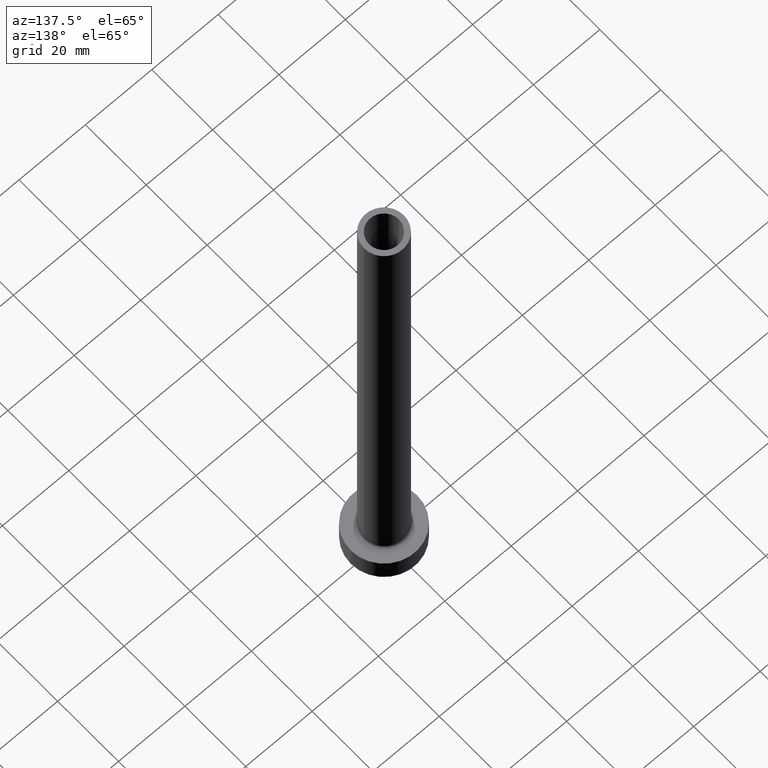
[diagram: clean part render]
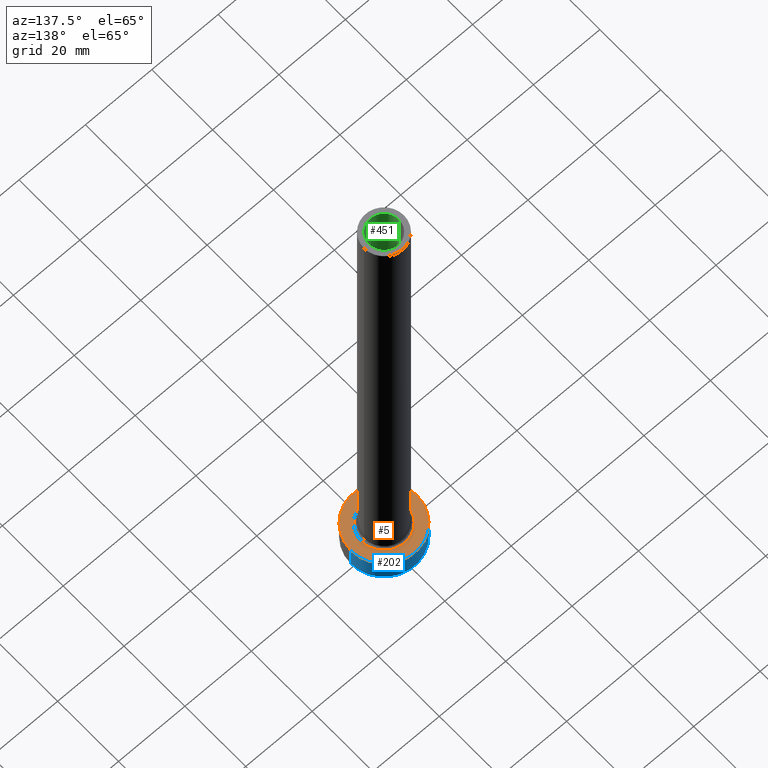
[diagram: same view with three faces highlighted in distinct colors, each labeled with its STEP entity id]
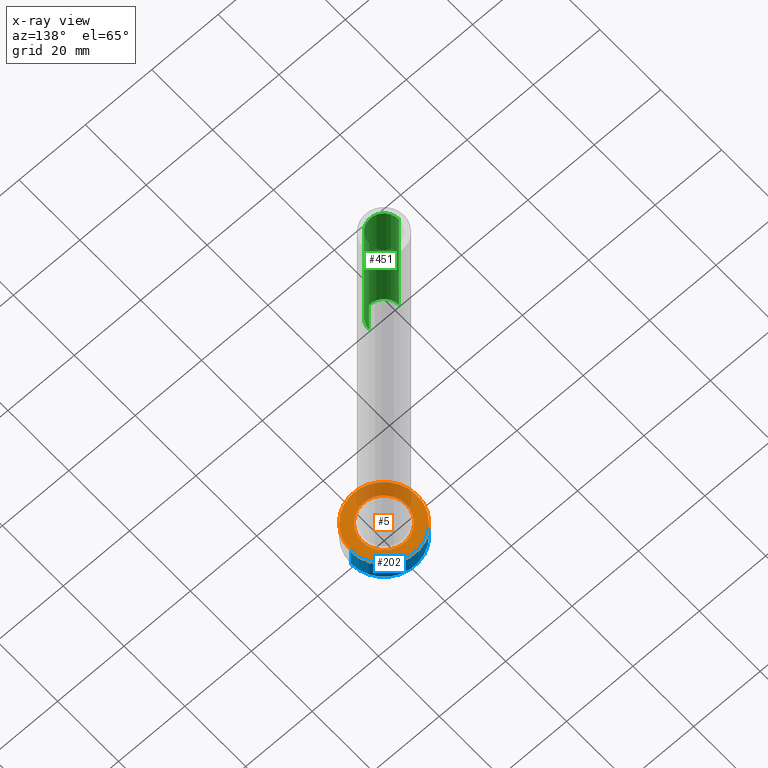
[diagram: x-ray of the same camera — body ghosted, the three highlighted faces saturated]
A machine part, auxiliary view with three faces highlighted in distinct colors.
The next image is the same camera in x-ray (body ghosted, the three faces saturated) — at least one of them is partly hidden behind the body in this view.
Their STEP definitions:

[orange] entity #5 — the highlighted planar face has unit normal (0, 0, 1).
#2 = VERTEX_POINT ( 'NONE', #297 ) ;
#5 = ADVANCED_FACE ( 'NONE', ( #266, #360 ), #183, .T. ) ;
#8 = DIRECTION ( 'NONE',  ( 0.000000000000000000, 0.000000000000000000, 1.000000000000000000 ) ) ;
#23 = VERTEX_POINT ( 'NONE', #130 ) ;
#31 = ORIENTED_EDGE ( 'NONE', *, *, #400, .T. ) ;
#76 = ORIENTED_EDGE ( 'NONE', *, *, #120, .T. ) ;
#92 = DIRECTION ( 'NONE',  ( 0.000000000000000000, 0.000000000000000000, 1.000000000000000000 ) ) ;
#120 = EDGE_CURVE ( 'NONE', #447, #281, #215, .T. ) ;
#130 = CARTESIAN_POINT ( 'NONE',  ( 10.00000000000000000, 1.224646799147353256E-15, 7.000000000000000000 ) ) ;
#142 = EDGE_LOOP ( 'NONE', ( #419, #76 ) ) ;
#173 = EDGE_LOOP ( 'NONE', ( #31, #258 ) ) ;
#183 = PLANE ( 'NONE',  #337 ) ;
#186 = AXIS2_PLACEMENT_3D ( 'NONE', #203, #92, #304 ) ;
#203 = CARTESIAN_POINT ( 'NONE',  ( 0.000000000000000000, 0.000000000000000000, 7.000000000000000000 ) ) ;
#215 = CIRCLE ( 'NONE', #275, 6.700000000000001066 ) ;
#224 = DIRECTION ( 'NONE',  ( 1.000000000000000000, 0.000000000000000000, -0.000000000000000000 ) ) ;
#226 = CARTESIAN_POINT ( 'NONE',  ( 0.000000000000000000, 0.000000000000000000, 7.000000000000000000 ) ) ;
#229 = CARTESIAN_POINT ( 'NONE',  ( 6.700000000000001066, 0.000000000000000000, 7.000000000000006217 ) ) ;
#251 = DIRECTION ( 'NONE',  ( 1.000000000000000000, 0.000000000000000000, 0.000000000000000000 ) ) ;
#253 = DIRECTION ( 'NONE',  ( -0.000000000000000000, -0.000000000000000000, -1.000000000000000000 ) ) ;
#258 = ORIENTED_EDGE ( 'NONE', *, *, #279, .T. ) ;
#260 = CIRCLE ( 'NONE', #186, 10.00000000000000000 ) ;
#265 = DIRECTION ( 'NONE',  ( 1.000000000000000000, 0.000000000000000000, 0.000000000000000000 ) ) ;
#266 = FACE_BOUND ( 'NONE', #142, .T. ) ;
#271 = CARTESIAN_POINT ( 'NONE',  ( -6.700000000000001066, 8.205133554287267548E-16, 7.000000000000006217 ) ) ;
#275 = AXIS2_PLACEMENT_3D ( 'NONE', #429, #253, #251 ) ;
#279 = EDGE_CURVE ( 'NONE', #23, #2, #410, .T. ) ;
#281 = VERTEX_POINT ( 'NONE', #229 ) ;
#294 = DIRECTION ( 'NONE',  ( 0.000000000000000000, 0.000000000000000000, 1.000000000000000000 ) ) ;
#297 = CARTESIAN_POINT ( 'NONE',  ( -10.00000000000000000, 0.000000000000000000, 7.000000000000000000 ) ) ;
#304 = DIRECTION ( 'NONE',  ( 1.000000000000000000, 0.000000000000000000, 0.000000000000000000 ) ) ;
#318 = CARTESIAN_POINT ( 'NONE',  ( 0.000000000000000000, 0.000000000000000000, 7.000000000000000000 ) ) ;
#322 = CARTESIAN_POINT ( 'NONE',  ( 0.000000000000000000, 0.000000000000000000, 7.000000000000000000 ) ) ;
#325 = AXIS2_PLACEMENT_3D ( 'NONE', #318, #294, #265 ) ;
#332 = EDGE_CURVE ( 'NONE', #281, #447, #439, .T. ) ;
#337 = AXIS2_PLACEMENT_3D ( 'NONE', #322, #8, #224 ) ;
#360 = FACE_OUTER_BOUND ( 'NONE', #173, .T. ) ;
#369 = AXIS2_PLACEMENT_3D ( 'NONE', #226, #438, #395 ) ;
#395 = DIRECTION ( 'NONE',  ( 1.000000000000000000, 0.000000000000000000, 0.000000000000000000 ) ) ;
#400 = EDGE_CURVE ( 'NONE', #2, #23, #260, .T. ) ;
#410 = CIRCLE ( 'NONE', #325, 10.00000000000000000 ) ;
#419 = ORIENTED_EDGE ( 'NONE', *, *, #332, .T. ) ;
#429 = CARTESIAN_POINT ( 'NONE',  ( 0.000000000000000000, 0.000000000000000000, 7.000000000000000000 ) ) ;
#438 = DIRECTION ( 'NONE',  ( -0.000000000000000000, -0.000000000000000000, -1.000000000000000000 ) ) ;
#439 = CIRCLE ( 'NONE', #369, 6.700000000000001066 ) ;
#447 = VERTEX_POINT ( 'NONE', #271 ) ;

[blue] entity #202 — the highlighted cylindrical surface (partial cylindrical patch) has radius 10 mm, axis along (-0, -0, -1).
#2 = VERTEX_POINT ( 'NONE', #297 ) ;
#7 = CARTESIAN_POINT ( 'NONE',  ( 10.00000000000000000, 1.224646799147353256E-15, 0.000000000000000000 ) ) ;
#23 = VERTEX_POINT ( 'NONE', #130 ) ;
#26 = ORIENTED_EDGE ( 'NONE', *, *, #279, .F. ) ;
#28 = AXIS2_PLACEMENT_3D ( 'NONE', #81, #222, #363 ) ;
#53 = VECTOR ( 'NONE', #436, 1000.000000000000000 ) ;
#68 = VECTOR ( 'NONE', #263, 1000.000000000000000 ) ;
#69 = ORIENTED_EDGE ( 'NONE', *, *, #319, .F. ) ;
#81 = CARTESIAN_POINT ( 'NONE',  ( 0.000000000000000000, 0.000000000000000000, 0.000000000000000000 ) ) ;
#111 = VERTEX_POINT ( 'NONE', #413 ) ;
#116 = LINE ( 'NONE', #189, #68 ) ;
#130 = CARTESIAN_POINT ( 'NONE',  ( 10.00000000000000000, 1.224646799147353256E-15, 7.000000000000000000 ) ) ;
#136 = ORIENTED_EDGE ( 'NONE', *, *, #365, .T. ) ;
#151 = CARTESIAN_POINT ( 'NONE',  ( 0.000000000000000000, 0.000000000000000000, 7.000000000000000000 ) ) ;
#184 = AXIS2_PLACEMENT_3D ( 'NONE', #151, #389, #404 ) ;
#189 = CARTESIAN_POINT ( 'NONE',  ( 10.00000000000000000, 1.224646799147353256E-15, 7.000000000000000000 ) ) ;
#202 = ADVANCED_FACE ( 'NONE', ( #457 ), #329, .T. ) ;
#222 = DIRECTION ( 'NONE',  ( 0.000000000000000000, 0.000000000000000000, 1.000000000000000000 ) ) ;
#230 = EDGE_CURVE ( 'NONE', #23, #254, #116, .T. ) ;
#244 = ORIENTED_EDGE ( 'NONE', *, *, #230, .T. ) ;
#254 = VERTEX_POINT ( 'NONE', #7 ) ;
#263 = DIRECTION ( 'NONE',  ( -0.000000000000000000, -0.000000000000000000, -1.000000000000000000 ) ) ;
#265 = DIRECTION ( 'NONE',  ( 1.000000000000000000, 0.000000000000000000, 0.000000000000000000 ) ) ;
#279 = EDGE_CURVE ( 'NONE', #23, #2, #410, .T. ) ;
#294 = DIRECTION ( 'NONE',  ( 0.000000000000000000, 0.000000000000000000, 1.000000000000000000 ) ) ;
#297 = CARTESIAN_POINT ( 'NONE',  ( -10.00000000000000000, 0.000000000000000000, 7.000000000000000000 ) ) ;
#318 = CARTESIAN_POINT ( 'NONE',  ( 0.000000000000000000, 0.000000000000000000, 7.000000000000000000 ) ) ;
#319 = EDGE_CURVE ( 'NONE', #2, #111, #356, .T. ) ;
#325 = AXIS2_PLACEMENT_3D ( 'NONE', #318, #294, #265 ) ;
#329 = CYLINDRICAL_SURFACE ( 'NONE', #184, 10.00000000000000000 ) ;
#333 = CIRCLE ( 'NONE', #28, 10.00000000000000000 ) ;
#356 = LINE ( 'NONE', #435, #53 ) ;
#363 = DIRECTION ( 'NONE',  ( 1.000000000000000000, 0.000000000000000000, 0.000000000000000000 ) ) ;
#365 = EDGE_CURVE ( 'NONE', #254, #111, #333, .T. ) ;
#389 = DIRECTION ( 'NONE',  ( -0.000000000000000000, -0.000000000000000000, -1.000000000000000000 ) ) ;
#404 = DIRECTION ( 'NONE',  ( -1.000000000000000000, 0.000000000000000000, 0.000000000000000000 ) ) ;
#410 = CIRCLE ( 'NONE', #325, 10.00000000000000000 ) ;
#413 = CARTESIAN_POINT ( 'NONE',  ( -10.00000000000000000, 0.000000000000000000, 0.000000000000000000 ) ) ;
#435 = CARTESIAN_POINT ( 'NONE',  ( -10.00000000000000000, 0.000000000000000000, 7.000000000000000000 ) ) ;
#436 = DIRECTION ( 'NONE',  ( -0.000000000000000000, -0.000000000000000000, -1.000000000000000000 ) ) ;
#444 = EDGE_LOOP ( 'NONE', ( #26, #244, #136, #69 ) ) ;
#457 = FACE_OUTER_BOUND ( 'NONE', #444, .T. ) ;

[green] entity #451 — the highlighted cylindrical surface (edge-blend (fillet) strip) has radius 4.5 mm, axis along (0, 0, -1).
#15 = CARTESIAN_POINT ( 'NONE',  ( 4.500000000000000000, 5.510910596163087583E-16, 115.0000000000000000 ) ) ;
#22 = DIRECTION ( 'NONE',  ( -1.000000000000000000, 0.000000000000000000, 0.000000000000000000 ) ) ;
#51 = CARTESIAN_POINT ( 'NONE',  ( 0.000000000000000000, 0.000000000000000000, 160.0000000000000000 ) ) ;
#56 = DIRECTION ( 'NONE',  ( 0.000000000000000000, 0.000000000000000000, -1.000000000000000000 ) ) ;
#64 = EDGE_LOOP ( 'NONE', ( #241, #315, #103, #388 ) ) ;
#75 = CARTESIAN_POINT ( 'NONE',  ( 4.500000000000000000, 5.510910596163087583E-16, 160.0000000000000000 ) ) ;
#86 = VECTOR ( 'NONE', #56, 1000.000000000000000 ) ;
#91 = AXIS2_PLACEMENT_3D ( 'NONE', #383, #460, #454 ) ;
#96 = CARTESIAN_POINT ( 'NONE',  ( 0.000000000000000000, 0.000000000000000000, 160.0000000000000000 ) ) ;
#100 = VERTEX_POINT ( 'NONE', #441 ) ;
#103 = ORIENTED_EDGE ( 'NONE', *, *, #143, .F. ) ;
#118 = VERTEX_POINT ( 'NONE', #15 ) ;
#123 = AXIS2_PLACEMENT_3D ( 'NONE', #51, #443, #124 ) ;
#124 = DIRECTION ( 'NONE',  ( 1.000000000000000000, 0.000000000000000000, 0.000000000000000000 ) ) ;
#143 = EDGE_CURVE ( 'NONE', #455, #118, #330, .T. ) ;
#167 = VECTOR ( 'NONE', #188, 1000.000000000000000 ) ;
#188 = DIRECTION ( 'NONE',  ( 0.000000000000000000, 0.000000000000000000, -1.000000000000000000 ) ) ;
#199 = CARTESIAN_POINT ( 'NONE',  ( 4.500000000000000000, 5.510910596163087583E-16, 160.0000000000000000 ) ) ;
#208 = CIRCLE ( 'NONE', #123, 4.500000000000000000 ) ;
#236 = DIRECTION ( 'NONE',  ( 0.000000000000000000, 0.000000000000000000, -1.000000000000000000 ) ) ;
#241 = ORIENTED_EDGE ( 'NONE', *, *, #440, .T. ) ;
#259 = CARTESIAN_POINT ( 'NONE',  ( -4.500000000000000000, 0.000000000000000000, 160.0000000000000000 ) ) ;
#262 = LINE ( 'NONE', #259, #167 ) ;
#267 = CYLINDRICAL_SURFACE ( 'NONE', #461, 4.500000000000000000 ) ;
#287 = VERTEX_POINT ( 'NONE', #75 ) ;
#315 = ORIENTED_EDGE ( 'NONE', *, *, #387, .T. ) ;
#324 = LINE ( 'NONE', #199, #86 ) ;
#330 = CIRCLE ( 'NONE', #91, 4.500000000000000000 ) ;
#331 = CARTESIAN_POINT ( 'NONE',  ( -4.500000000000000000, 0.000000000000000000, 115.0000000000000000 ) ) ;
#334 = FACE_OUTER_BOUND ( 'NONE', #64, .T. ) ;
#345 = EDGE_CURVE ( 'NONE', #100, #455, #262, .T. ) ;
#383 = CARTESIAN_POINT ( 'NONE',  ( 0.000000000000000000, 0.000000000000000000, 115.0000000000000000 ) ) ;
#387 = EDGE_CURVE ( 'NONE', #287, #118, #324, .T. ) ;
#388 = ORIENTED_EDGE ( 'NONE', *, *, #345, .F. ) ;
#440 = EDGE_CURVE ( 'NONE', #100, #287, #208, .T. ) ;
#441 = CARTESIAN_POINT ( 'NONE',  ( -4.500000000000000000, 0.000000000000000000, 160.0000000000000000 ) ) ;
#443 = DIRECTION ( 'NONE',  ( 0.000000000000000000, 0.000000000000000000, 1.000000000000000000 ) ) ;
#451 = ADVANCED_FACE ( 'NONE', ( #334 ), #267, .F. ) ;
#454 = DIRECTION ( 'NONE',  ( 1.000000000000000000, 0.000000000000000000, 0.000000000000000000 ) ) ;
#455 = VERTEX_POINT ( 'NONE', #331 ) ;
#460 = DIRECTION ( 'NONE',  ( 0.000000000000000000, 0.000000000000000000, 1.000000000000000000 ) ) ;
#461 = AXIS2_PLACEMENT_3D ( 'NONE', #96, #236, #22 ) ;